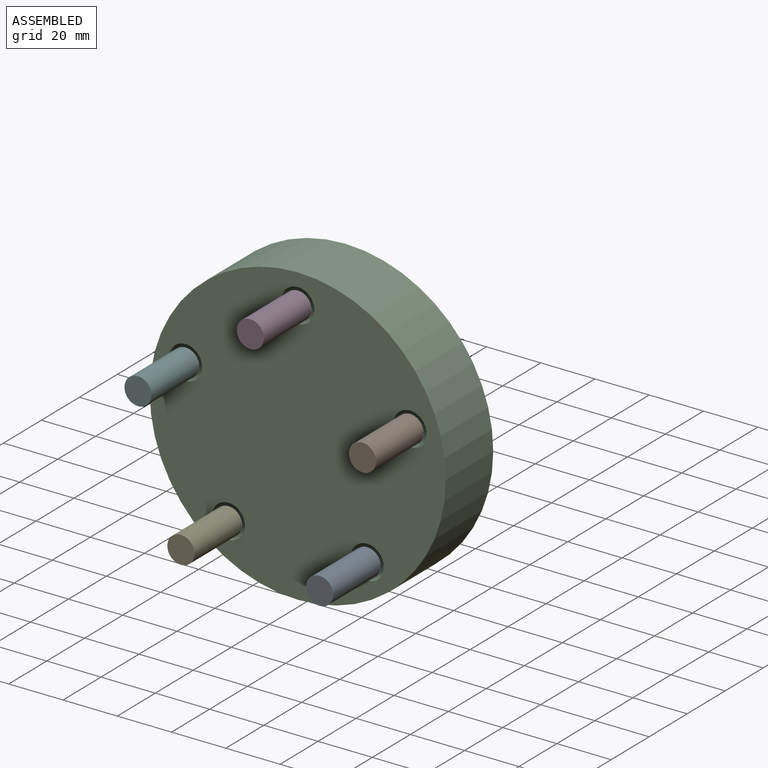
[diagram: assembled view]
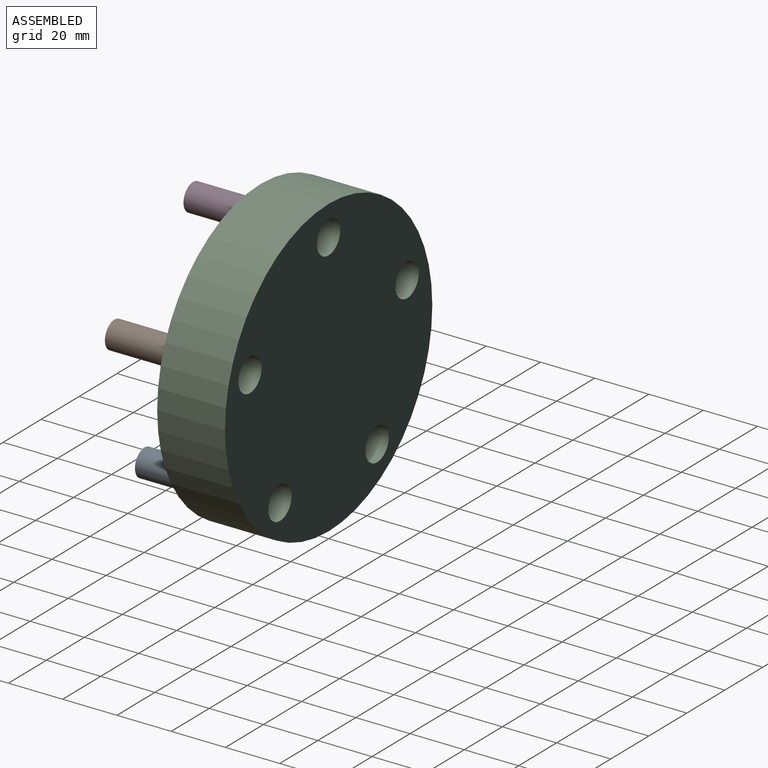
[diagram: assembled view, second angle]
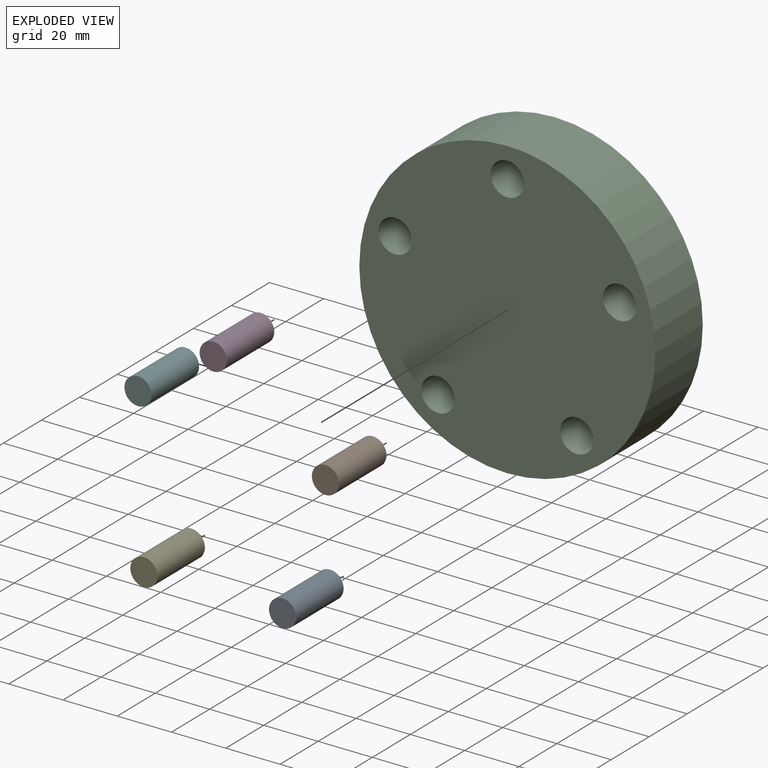
[diagram: exploded view]
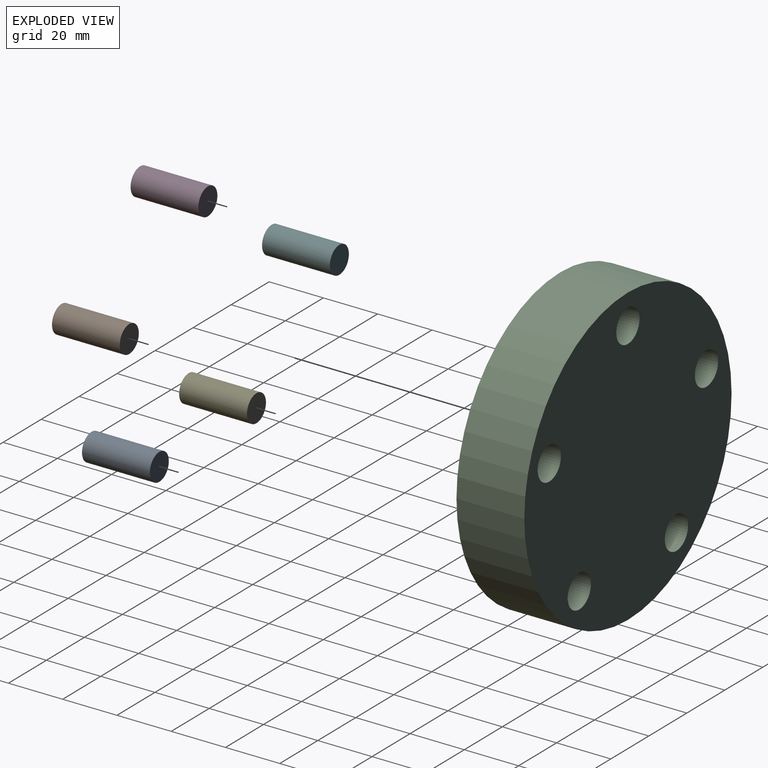
[diagram: exploded view, second angle]
ASSEMBLY  parts=6 mates=5
PART A: 3 faces, bbox 10x25x10 mm
  f0: cylinder r=5mm len=25mm, axis (0,1,0), area 785.4mm2, adj f1,f2
  f1: plane 10x10mm, normal (0,-1,0), area 78.5mm2, adj f0
  f2: plane 10x10mm, normal (0,1,0), area 78.5mm2, adj f0
PART B: same geometry as A
PART C: 8 faces, bbox 109.1x25x109.1 mm
  f0: cylinder r=6.11mm len=25mm, axis (0,1,0), area 959.2mm2, adj f6,f7
  f1: cylinder r=6.11mm len=25mm, axis (0,1,0), area 959.2mm2, adj f6,f7
  f2: cylinder r=6.11mm len=25mm, axis (0,1,0), area 959.2mm2, adj f6,f7
  f3: cylinder r=6.11mm len=25mm, axis (0,1,0), area 959.2mm2, adj f6,f7
  f4: cylinder r=6.11mm len=25mm, axis (0,1,0), area 959.2mm2, adj f6,f7
  f5: cylinder r=54.54mm len=109.08mm, axis (0,1,0), area 8567.4mm2, adj f6,f7
  f6: plane 109.08x109.08mm, normal (0,-1,0), area 8760mm2, adj f0,f1,f2,f3,f4,f5
  f7: plane 109.08x109.08mm, normal (0,1,0), area 8760mm2, adj f0,f1,f2,f3,f4,f5
PART D: same geometry as A
PART E: same geometry as A
PART F: same geometry as A
PLACE A rot(axis=(1,0,0),180deg) t=(96.48,-50,23.82)mm
PLACE B rot(axis=(1,0,0),180deg) t=(112.28,-50,72.45)mm
PLACE C at identity
PLACE D rot(axis=(1,0,0),180deg) t=(70.92,-50,102.5)mm
PLACE E rot(axis=(1,0,0),180deg) t=(45.36,-50,23.82)mm
PLACE F rot(axis=(1,0,0),180deg) t=(29.56,-50,72.45)mm
MATE fastened B.f0 <-> C.f4  axis (0,1,0) through (41.36,-25,13.44)mm
MATE fastened E.f0 <-> C.f2  axis (0,1,0) through (-25.56,-25,-35.18)mm
MATE fastened D.f0 <-> C.f0  axis (0,1,0) through (0,-25,43.49)mm
MATE fastened F.f0 <-> C.f1  axis (0,1,0) through (-41.36,-25,13.44)mm
MATE fastened A.f0 <-> C.f3  axis (0,1,0) through (25.56,-25,-35.18)mm
